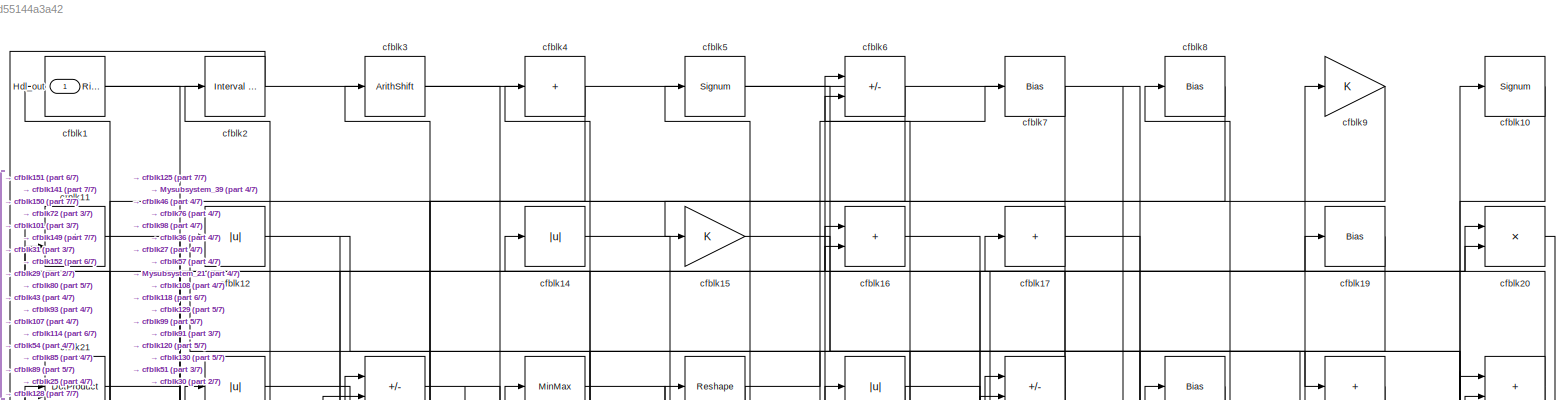
[diagram: root canvas - part 1/7, full width, top band]
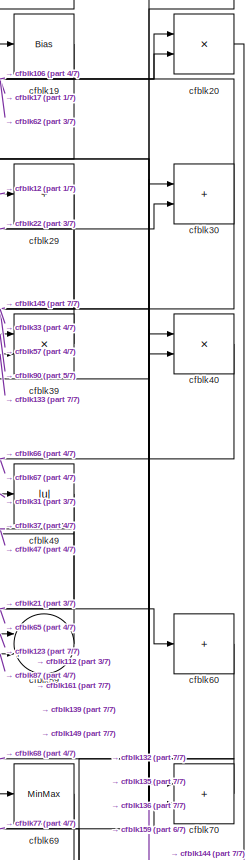
[diagram: root canvas - part 2/7, top right region]
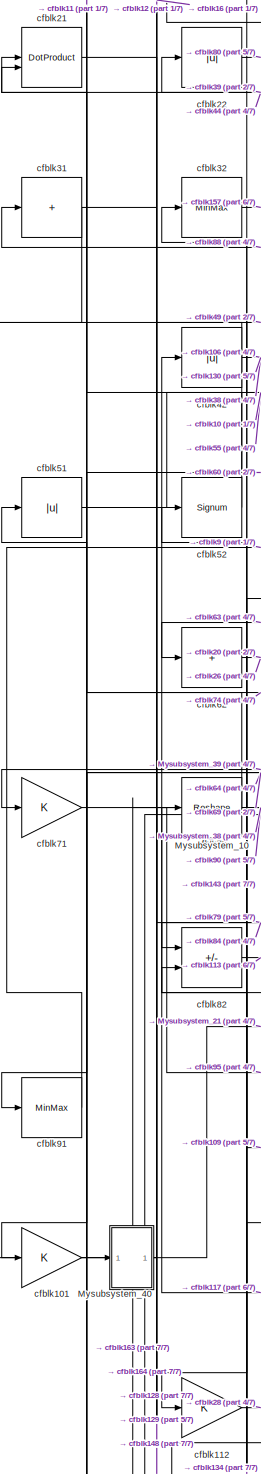
[diagram: root canvas - part 3/7, middle left region]
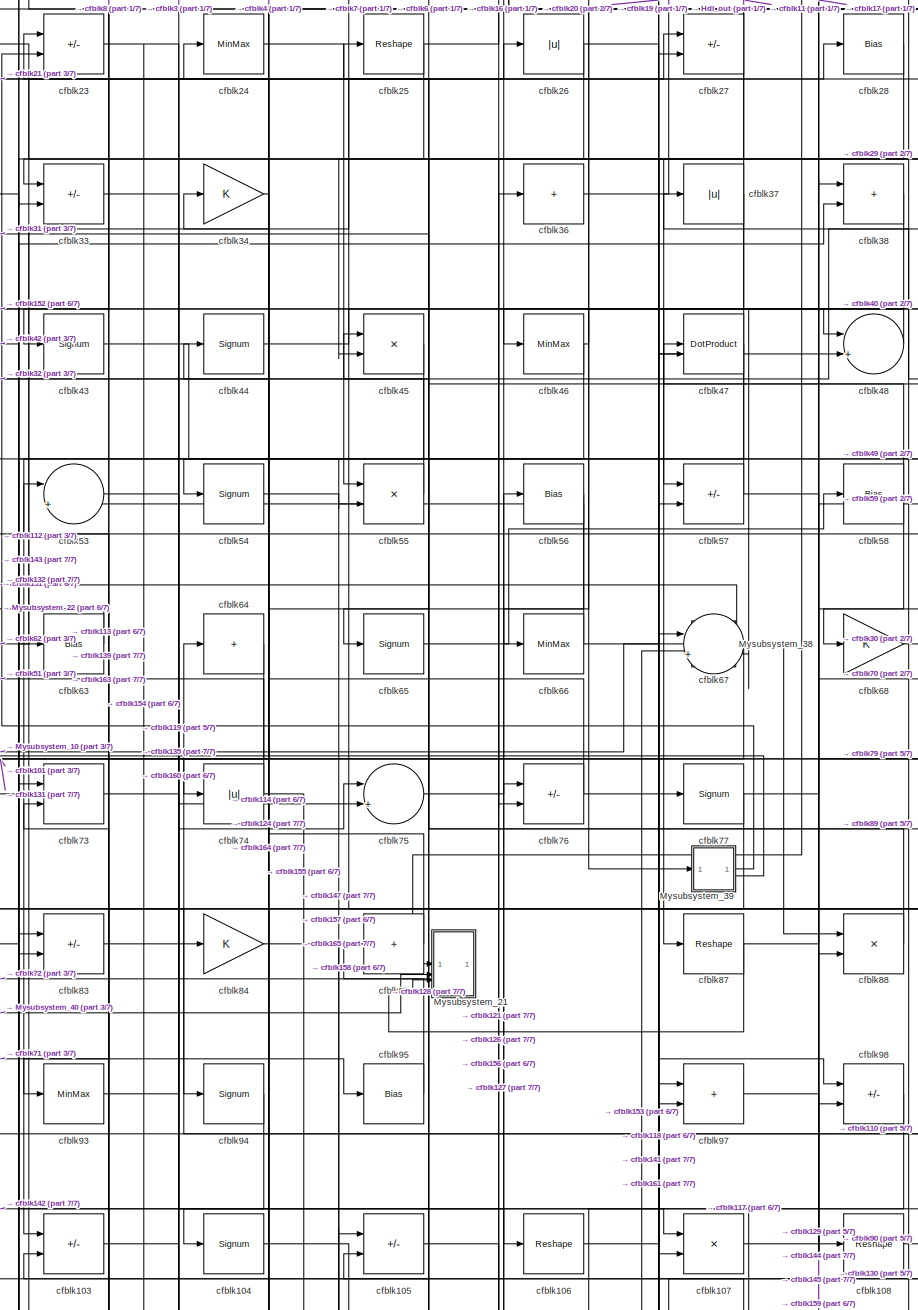
[diagram: root canvas - part 4/7, central region]
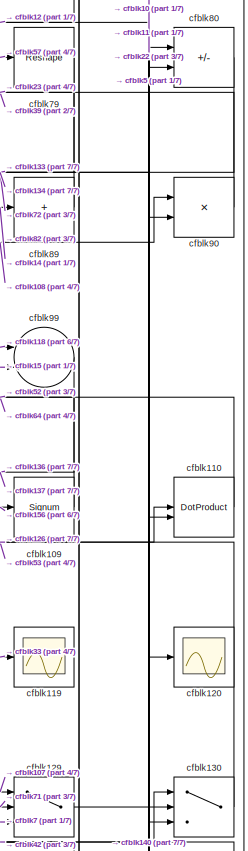
[diagram: root canvas - part 5/7, middle right region]
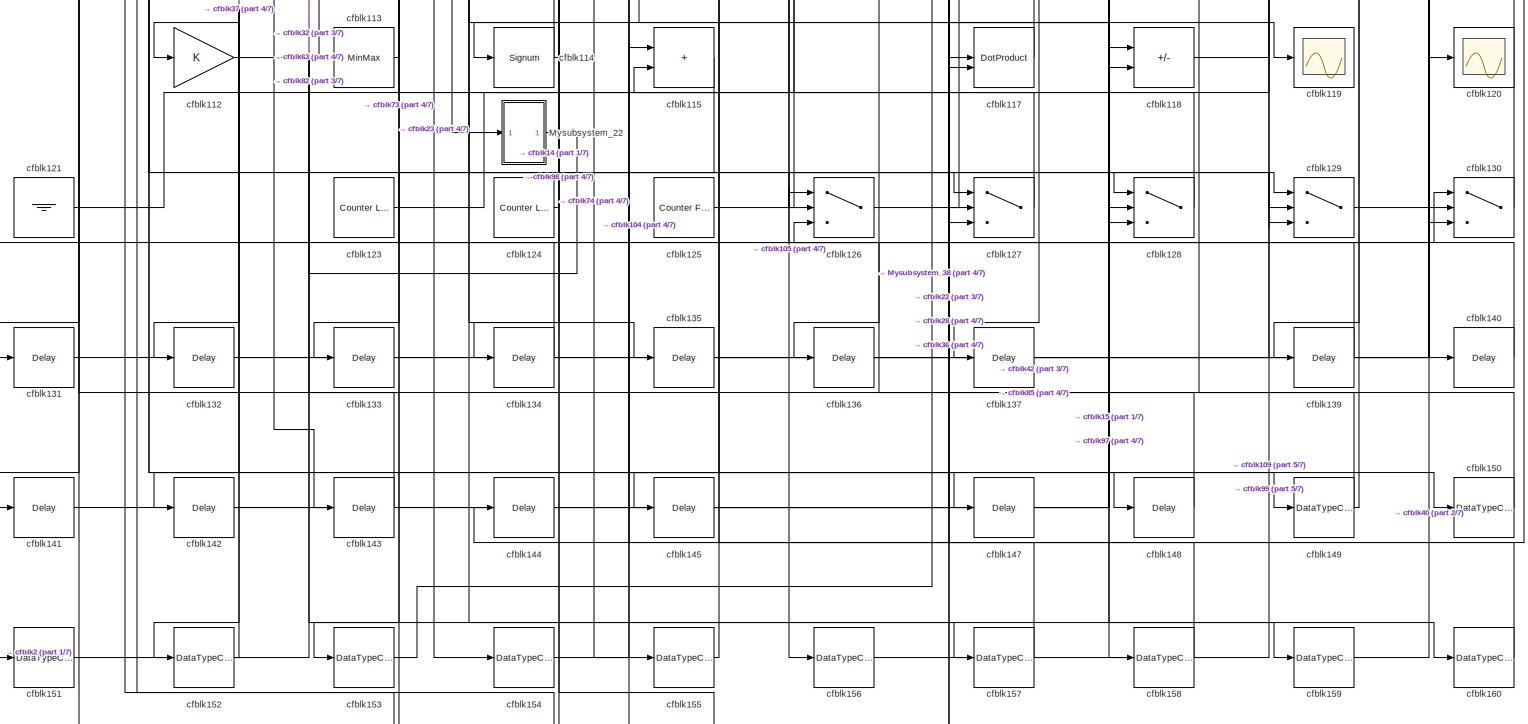
[diagram: root canvas - part 6/7, full width, bottom band]
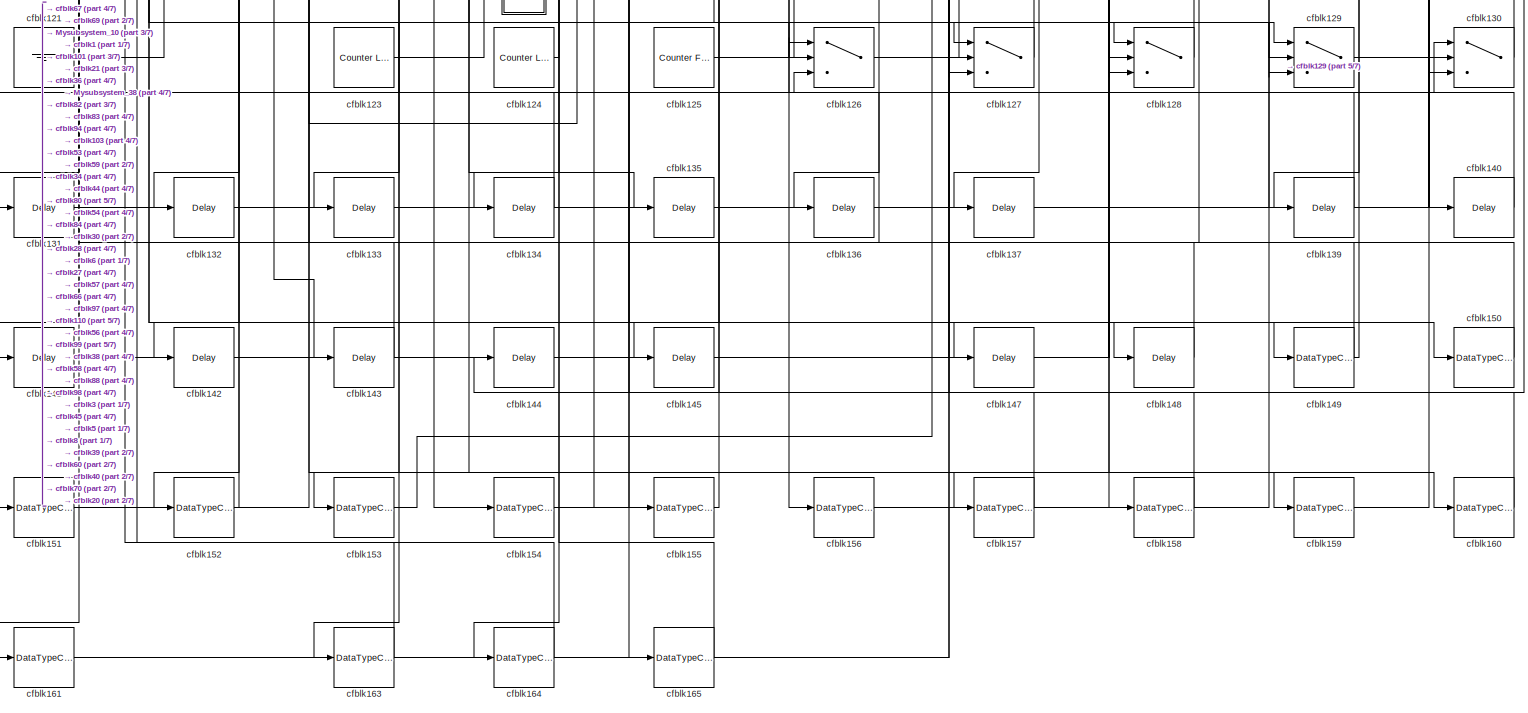
[diagram: root canvas - part 7/7, full width, bottom band]
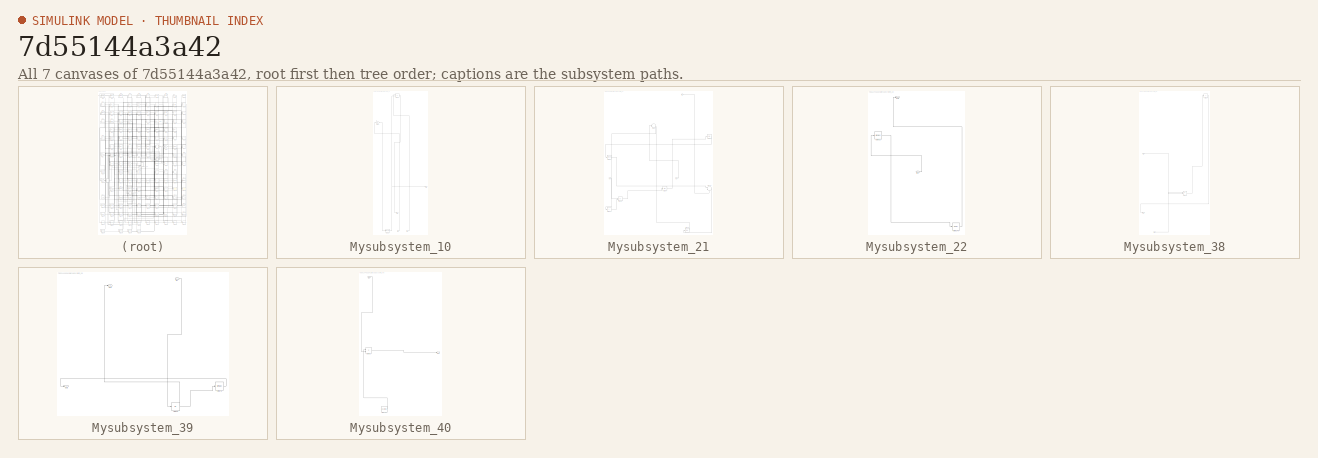
[diagram: thumbnail index - all 7 canvases of the model, root first then tree order]
MODEL slx_7d55144a3a42
KIND model
CONFIG AbsTol = auto
CONFIG EnableMultiTasking = off
CONFIG FixedStep = auto
CONFIG MaxStep = auto
CONFIG MinStep = auto
CONFIG RelTol = 1e-3
CONFIG SampleTimeConstraint = Unconstrained
CONFIG SolverName = VariableStepAuto
CONFIG StartTime = 0.0
CONFIG StopTime = 10.0
BLOCK [Outport] Hdl_out
  OutDataTypeStr = uint8
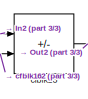
[diagram: Mysubsystem_10 - part 1/3, top center region]
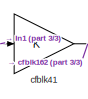
[diagram: Mysubsystem_10 - part 2/3, top left region]
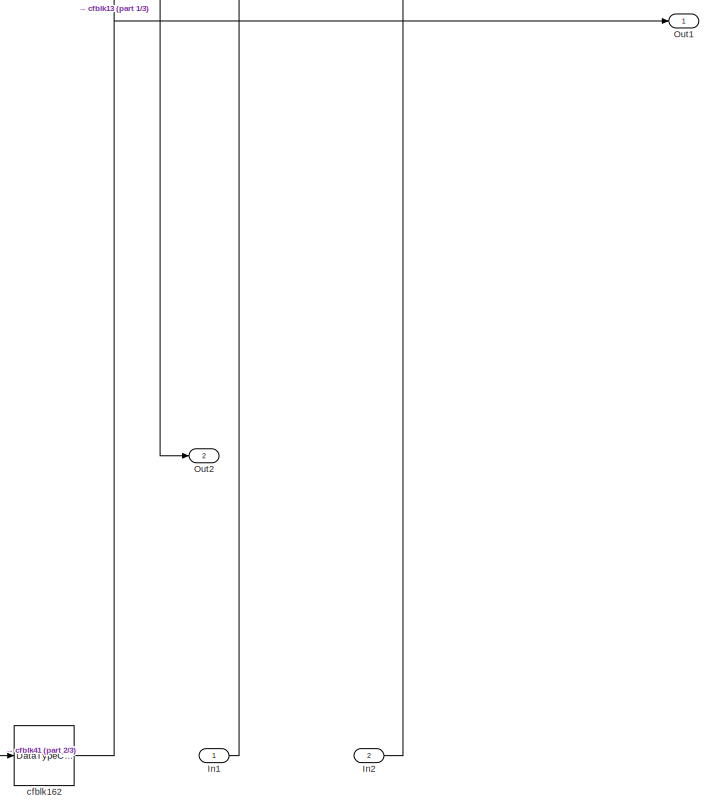
[diagram: Mysubsystem_10 - part 3/3, full width, bottom band]
BLOCK [SubSystem] Mysubsystem_10
  RTWFcnName = Mysubsystem_10
  RTWFcnNameOpts = User specified
  RTWFileNameOpts = Use function name
  RTWSystemCode = Reusable function
  TreatAsAtomicUnit = on
BLOCK [Inport] Mysubsystem_10/In1
BLOCK [Inport] Mysubsystem_10/In2
  Port = 2
BLOCK [Outport] Mysubsystem_10/Out1
BLOCK [Outport] Mysubsystem_10/Out2
  Port = 2
BLOCK [Sum] Mysubsystem_10/cfblk13
  IconShape = rectangular
  Inputs = +-
BLOCK [DataTypeConversion] Mysubsystem_10/cfblk162
  RndMeth = Floor
  SaturateOnIntegerOverflow = off
BLOCK [Gain] Mysubsystem_10/cfblk41
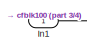
[diagram: Mysubsystem_21 - part 1/4, top right region]
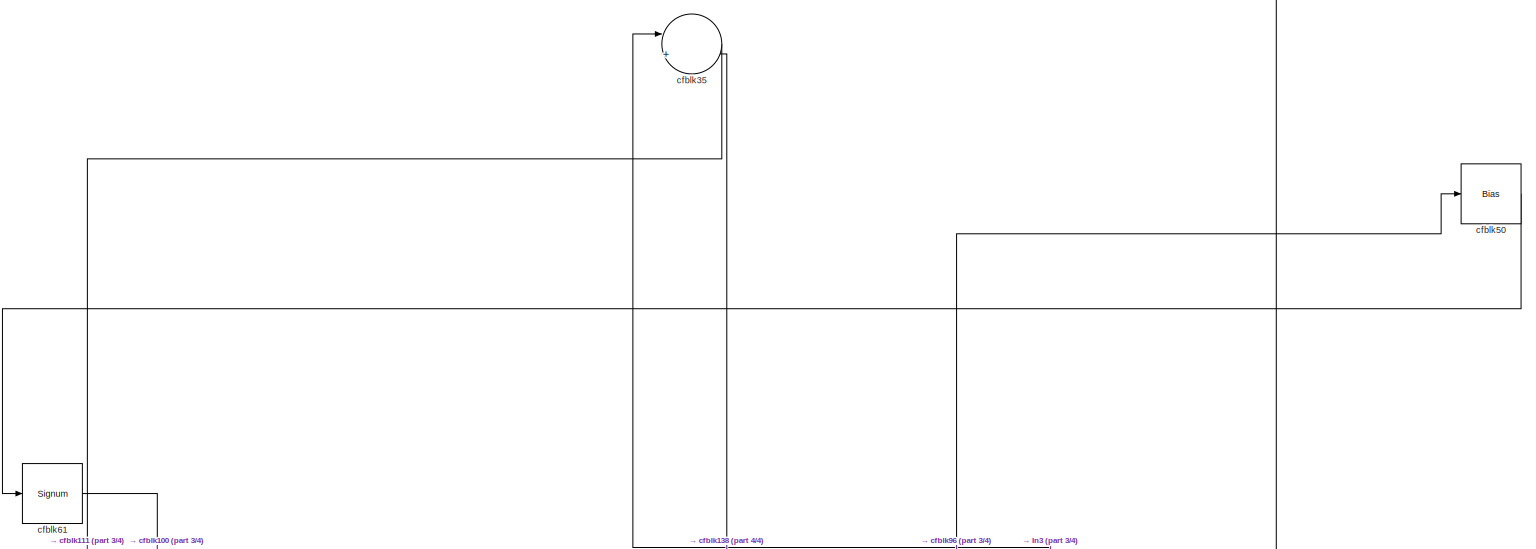
[diagram: Mysubsystem_21 - part 2/4, full width, middle band]
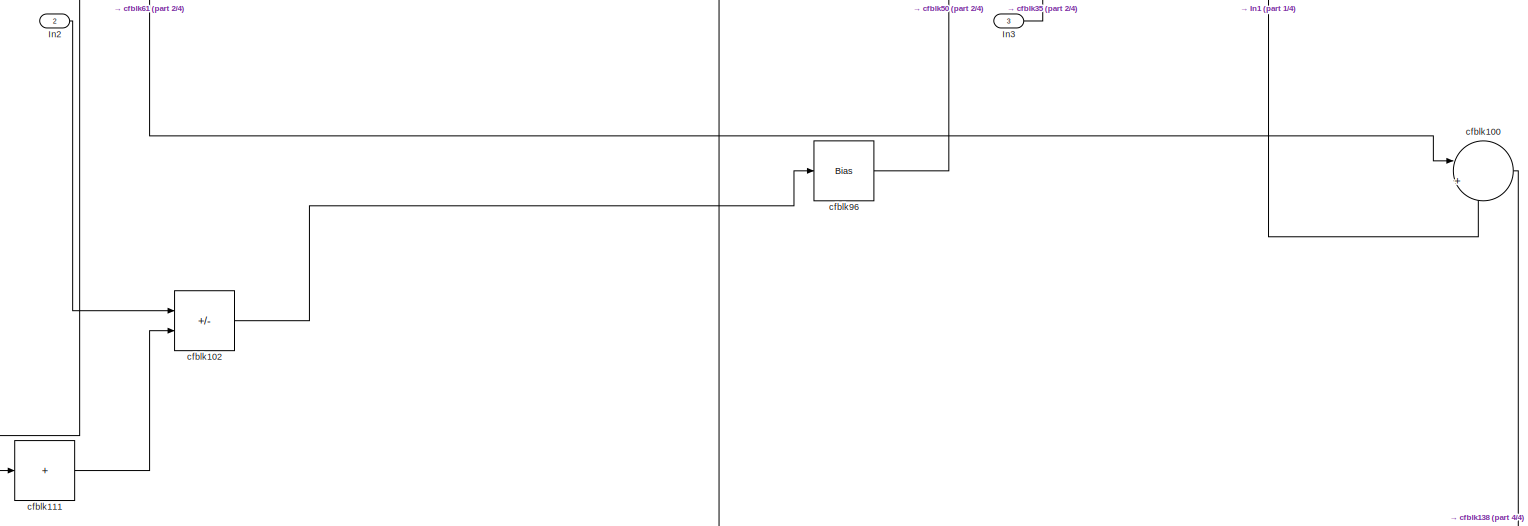
[diagram: Mysubsystem_21 - part 3/4, full width, bottom band]
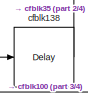
[diagram: Mysubsystem_21 - part 4/4, bottom right region]
BLOCK [SubSystem] Mysubsystem_21
  RTWFcnName = Mysubsystem_21
  RTWFcnNameOpts = User specified
  RTWFileNameOpts = Use function name
  RTWSystemCode = Reusable function
  TreatAsAtomicUnit = on
BLOCK [Inport] Mysubsystem_21/In1
BLOCK [Inport] Mysubsystem_21/In2
  Port = 2
BLOCK [Inport] Mysubsystem_21/In3
  Port = 3
BLOCK [Sum] Mysubsystem_21/cfblk100
  Inputs = |++
BLOCK [Sum] Mysubsystem_21/cfblk102
  IconShape = rectangular
  Inputs = +-
BLOCK [Sum] Mysubsystem_21/cfblk111
  IconShape = rectangular
  Inputs = +
BLOCK [Delay] Mysubsystem_21/cfblk138
  InputPortMap = u0
  SampleTime = 1
BLOCK [Sum] Mysubsystem_21/cfblk35
  Inputs = |++
BLOCK [Bias] Mysubsystem_21/cfblk50
  Bias = 0.0
  SaturateOnIntegerOverflow = off
BLOCK [Signum] Mysubsystem_21/cfblk61
BLOCK [Bias] Mysubsystem_21/cfblk96
  Bias = 0.0
  SaturateOnIntegerOverflow = off
BLOCK [SubSystem] Mysubsystem_22
  RTWFcnName = Mysubsystem_22
  RTWFcnNameOpts = User specified
  RTWFileNameOpts = Use function name
  RTWSystemCode = Reusable function
  TreatAsAtomicUnit = on
BLOCK [Inport] Mysubsystem_22/In1
BLOCK [Outport] Mysubsystem_22/Out1
BLOCK [Delay] Mysubsystem_22/cfblk146
  InputPortMap = u0
  SampleTime = 1
BLOCK [MinMax] Mysubsystem_22/cfblk92
BLOCK [SubSystem] Mysubsystem_38
  RTWFcnName = Mysubsystem_38
  RTWFcnNameOpts = User specified
  RTWFileNameOpts = Use function name
  RTWSystemCode = Reusable function
  TreatAsAtomicUnit = on
BLOCK [Inport] Mysubsystem_38/In1
BLOCK [Inport] Mysubsystem_38/In2
  Port = 2
BLOCK [Outport] Mysubsystem_38/Out1
BLOCK [Product] Mysubsystem_38/cfblk116
  Inputs = */
  RndMeth = Zero
  SaturateOnIntegerOverflow = on
BLOCK [Sum] Mysubsystem_38/cfblk18
  IconShape = rectangular
  Inputs = +
BLOCK [SubSystem] Mysubsystem_39
  RTWFcnName = Mysubsystem_39
  RTWFcnNameOpts = User specified
  RTWFileNameOpts = Use function name
  RTWSystemCode = Reusable function
  TreatAsAtomicUnit = on
BLOCK [Inport] Mysubsystem_39/In1
BLOCK [Outport] Mysubsystem_39/Out1
BLOCK [Outport] Mysubsystem_39/Out2
  Port = 2
BLOCK [MinMax] Mysubsystem_39/cfblk78
BLOCK [Abs] Mysubsystem_39/cfblk86
  SaturateOnIntegerOverflow = off
BLOCK [SubSystem] Mysubsystem_40
  RTWFcnName = Mysubsystem_40
  RTWFcnNameOpts = User specified
  RTWFileNameOpts = Use function name
  RTWSystemCode = Reusable function
  TreatAsAtomicUnit = on
BLOCK [Inport] Mysubsystem_40/In1
BLOCK [Outport] Mysubsystem_40/Out1
BLOCK [Reference] Mysubsystem_40/cfblk122  REF=hdlsllib/Sources/Counter
Free-Running
  SourceBlock = hdlsllib/Sources/Counter\nFree-Running
  SourceType = Counter Free-Running
BLOCK [Product] Mysubsystem_40/cfblk81
  Inputs = */
  RndMeth = Zero
  SaturateOnIntegerOverflow = on
BLOCK [Reference] cfblk1  REF=hdlsllib/Logic and Bit
Operations/Detect Rise
Positive
  SourceBlock = hdlsllib/Logic and Bit\nOperations/Detect Rise\nPositive
  SourceType = Detect Rise Positive
BLOCK [Signum] cfblk10
BLOCK [Gain] cfblk101
  OutDataTypeStr = uint8
BLOCK [Sum] cfblk103
  IconShape = rectangular
  Inputs = +-
  OutDataTypeStr = uint8
BLOCK [Signum] cfblk104
BLOCK [Sum] cfblk105
  IconShape = rectangular
  Inputs = +-
  OutDataTypeStr = uint8
BLOCK [Reshape] cfblk106
BLOCK [Product] cfblk107
  Inputs = */
  OutDataTypeStr = uint8
  RndMeth = Zero
  SaturateOnIntegerOverflow = on
BLOCK [Reshape] cfblk108
BLOCK [Signum] cfblk109
BLOCK [Sum] cfblk11
  IconShape = rectangular
  OutDataTypeStr = uint8
BLOCK [DotProduct] cfblk110
  OutDataTypeStr = uint8
BLOCK [Gain] cfblk112
  OutDataTypeStr = uint8
BLOCK [MinMax] cfblk113
  OutDataTypeStr = uint8
BLOCK [Signum] cfblk114
BLOCK [Sum] cfblk115
  IconShape = rectangular
  OutDataTypeStr = uint8
BLOCK [DotProduct] cfblk117
  OutDataTypeStr = uint8
BLOCK [Sum] cfblk118
  IconShape = rectangular
  Inputs = +-
  OutDataTypeStr = uint8
BLOCK [Scope] cfblk119
  Floating = off
  NumInputPorts = 1
  ScopeSpecificationString = Simulink.scopes.TimeScopeBlockCfg('CurrentConfiguration', extmgr.ConfigurationSet(extmgr.Configuration('Core','General UI',true),extmgr.Configuration('Core','Source UI',true),extmgr.Configuration('Sources','WiredSimulink',true,'DataLoggingVariableName','ScopeData2','DataLoggingSaveFormat','Array','DataLoggingLimitDataPoints',true,'DataLoggingDecimation','1'),extmgr.Configuration('Visuals','Time Do...<+868ch>
BLOCK [Abs] cfblk12
  OutDataTypeStr = uint8
  SaturateOnIntegerOverflow = off
BLOCK [Scope] cfblk120
  Floating = off
  NumInputPorts = 1
  ScopeSpecificationString = Simulink.scopes.TimeScopeBlockCfg('CurrentConfiguration', extmgr.ConfigurationSet(extmgr.Configuration('Core','General UI',true),extmgr.Configuration('Core','Source UI',true),extmgr.Configuration('Sources','WiredSimulink',true,'DataLoggingVariableName','ScopeData2','DataLoggingSaveFormat','Array','DataLoggingLimitDataPoints',true,'DataLoggingDecimation','1'),extmgr.Configuration('Visuals','Time Do...<+868ch>
BLOCK [Ground] cfblk121
BLOCK [Reference] cfblk123  REF=hdlsllib/Sources/Counter
Limited
  SourceBlock = hdlsllib/Sources/Counter\nLimited
  SourceType = Counter Limited
BLOCK [Reference] cfblk124  REF=hdlsllib/Sources/Counter
Limited
  SourceBlock = hdlsllib/Sources/Counter\nLimited
  SourceType = Counter Limited
BLOCK [Reference] cfblk125  REF=hdlsllib/Sources/Counter
Free-Running
  SourceBlock = hdlsllib/Sources/Counter\nFree-Running
  SourceType = Counter Free-Running
BLOCK [Switch] cfblk126
  InputSameDT = off
  OutDataTypeStr = uint8
  SaturateOnIntegerOverflow = off
BLOCK [Switch] cfblk127
  InputSameDT = off
  OutDataTypeStr = uint8
  SaturateOnIntegerOverflow = off
BLOCK [Switch] cfblk128
  InputSameDT = off
  OutDataTypeStr = uint8
  SaturateOnIntegerOverflow = off
BLOCK [Switch] cfblk129
  InputSameDT = off
  OutDataTypeStr = uint8
  SaturateOnIntegerOverflow = off
BLOCK [Switch] cfblk130
  InputSameDT = off
  OutDataTypeStr = uint8
  SaturateOnIntegerOverflow = off
BLOCK [Delay] cfblk131
  InputPortMap = u0
  SampleTime = 1
BLOCK [Delay] cfblk132
  InputPortMap = u0
  SampleTime = 1
BLOCK [Delay] cfblk133
  InputPortMap = u0
  SampleTime = 1
BLOCK [Delay] cfblk134
  InputPortMap = u0
  SampleTime = 1
BLOCK [Delay] cfblk135
  InputPortMap = u0
  SampleTime = 1
BLOCK [Delay] cfblk136
  InputPortMap = u0
  SampleTime = 1
BLOCK [Delay] cfblk137
  InputPortMap = u0
  SampleTime = 1
BLOCK [Delay] cfblk139
  InputPortMap = u0
  SampleTime = 1
BLOCK [Abs] cfblk14
  OutDataTypeStr = uint8
  SaturateOnIntegerOverflow = off
BLOCK [Delay] cfblk140
  InputPortMap = u0
  SampleTime = 1
BLOCK [Delay] cfblk141
  InputPortMap = u0
  SampleTime = 1
BLOCK [Delay] cfblk142
  InputPortMap = u0
  SampleTime = 1
BLOCK [Delay] cfblk143
  InputPortMap = u0
  SampleTime = 1
BLOCK [Delay] cfblk144
  InputPortMap = u0
  SampleTime = 1
BLOCK [Delay] cfblk145
  InputPortMap = u0
  SampleTime = 1
BLOCK [Delay] cfblk147
  InputPortMap = u0
  SampleTime = 1
BLOCK [Delay] cfblk148
  InputPortMap = u0
  SampleTime = 1
BLOCK [DataTypeConversion] cfblk149
  OutDataTypeStr = uint8
  RndMeth = Floor
  SaturateOnIntegerOverflow = off
BLOCK [Gain] cfblk15
  OutDataTypeStr = uint8
BLOCK [DataTypeConversion] cfblk150
  OutDataTypeStr = uint8
  RndMeth = Floor
  SaturateOnIntegerOverflow = off
BLOCK [DataTypeConversion] cfblk151
  OutDataTypeStr = uint8
  RndMeth = Floor
  SaturateOnIntegerOverflow = off
BLOCK [DataTypeConversion] cfblk152
  OutDataTypeStr = uint8
  RndMeth = Floor
  SaturateOnIntegerOverflow = off
BLOCK [DataTypeConversion] cfblk153
  OutDataTypeStr = uint8
  RndMeth = Floor
  SaturateOnIntegerOverflow = off
BLOCK [DataTypeConversion] cfblk154
  OutDataTypeStr = uint8
  RndMeth = Floor
  SaturateOnIntegerOverflow = off
BLOCK [DataTypeConversion] cfblk155
  OutDataTypeStr = uint8
  RndMeth = Floor
  SaturateOnIntegerOverflow = off
BLOCK [DataTypeConversion] cfblk156
  OutDataTypeStr = uint8
  RndMeth = Floor
  SaturateOnIntegerOverflow = off
BLOCK [DataTypeConversion] cfblk157
  OutDataTypeStr = uint8
  RndMeth = Floor
  SaturateOnIntegerOverflow = off
BLOCK [DataTypeConversion] cfblk158
  OutDataTypeStr = uint8
  RndMeth = Floor
  SaturateOnIntegerOverflow = off
BLOCK [DataTypeConversion] cfblk159
  OutDataTypeStr = uint8
  RndMeth = Floor
  SaturateOnIntegerOverflow = off
BLOCK [Sum] cfblk16
  IconShape = rectangular
  OutDataTypeStr = uint8
BLOCK [DataTypeConversion] cfblk160
  OutDataTypeStr = uint8
  RndMeth = Floor
  SaturateOnIntegerOverflow = off
BLOCK [DataTypeConversion] cfblk161
  OutDataTypeStr = uint8
  RndMeth = Floor
  SaturateOnIntegerOverflow = off
BLOCK [DataTypeConversion] cfblk163
  OutDataTypeStr = uint8
  RndMeth = Floor
  SaturateOnIntegerOverflow = off
BLOCK [DataTypeConversion] cfblk164
  OutDataTypeStr = uint8
  RndMeth = Floor
  SaturateOnIntegerOverflow = off
BLOCK [DataTypeConversion] cfblk165
  OutDataTypeStr = uint8
  RndMeth = Floor
  SaturateOnIntegerOverflow = off
BLOCK [Sum] cfblk17
  IconShape = rectangular
  Inputs = +
  OutDataTypeStr = uint8
BLOCK [Bias] cfblk19
  Bias = 0.0
  SaturateOnIntegerOverflow = off
BLOCK [Reference] cfblk2  REF=hdlsllib/Logic and Bit
Operations/Interval Test
  SourceBlock = hdlsllib/Logic and Bit\nOperations/Interval Test
  SourceType = Interval Test
BLOCK [Product] cfblk20
  Inputs = */
  OutDataTypeStr = uint8
  RndMeth = Zero
  SaturateOnIntegerOverflow = on
BLOCK [DotProduct] cfblk21
  OutDataTypeStr = uint8
BLOCK [Abs] cfblk22
  OutDataTypeStr = uint8
  SaturateOnIntegerOverflow = off
BLOCK [Sum] cfblk23
  IconShape = rectangular
  Inputs = +-
  OutDataTypeStr = uint8
BLOCK [MinMax] cfblk24
  OutDataTypeStr = uint8
BLOCK [Reshape] cfblk25
BLOCK [Abs] cfblk26
  OutDataTypeStr = uint8
  SaturateOnIntegerOverflow = off
BLOCK [Sum] cfblk27
  IconShape = rectangular
  Inputs = +-
  OutDataTypeStr = uint8
BLOCK [Bias] cfblk28
  Bias = 0.0
  SaturateOnIntegerOverflow = off
BLOCK [Sum] cfblk29
  IconShape = rectangular
  Inputs = +
  OutDataTypeStr = uint8
BLOCK [ArithShift] cfblk3
  BitShiftNumber = 8
  InputPortMap = u0
BLOCK [Sum] cfblk30
  IconShape = rectangular
  OutDataTypeStr = uint8
BLOCK [Sum] cfblk31
  IconShape = rectangular
  Inputs = +
  OutDataTypeStr = uint8
BLOCK [MinMax] cfblk32
  OutDataTypeStr = uint8
BLOCK [Sum] cfblk33
  IconShape = rectangular
  Inputs = +-
  OutDataTypeStr = uint8
BLOCK [Gain] cfblk34
  OutDataTypeStr = uint8
BLOCK [Sum] cfblk36
  IconShape = rectangular
  Inputs = +
  OutDataTypeStr = uint8
BLOCK [Abs] cfblk37
  OutDataTypeStr = uint8
  SaturateOnIntegerOverflow = off
BLOCK [Sum] cfblk38
  IconShape = rectangular
  OutDataTypeStr = uint8
BLOCK [Product] cfblk39
  Inputs = */
  OutDataTypeStr = uint8
  RndMeth = Zero
  SaturateOnIntegerOverflow = on
BLOCK [Sum] cfblk4
  IconShape = rectangular
  Inputs = +
  OutDataTypeStr = uint8
BLOCK [Product] cfblk40
  Inputs = */
  OutDataTypeStr = uint8
  RndMeth = Zero
  SaturateOnIntegerOverflow = on
BLOCK [Abs] cfblk42
  OutDataTypeStr = uint8
  SaturateOnIntegerOverflow = off
BLOCK [Signum] cfblk43
BLOCK [Signum] cfblk44
BLOCK [Product] cfblk45
  Inputs = */
  OutDataTypeStr = uint8
  RndMeth = Zero
  SaturateOnIntegerOverflow = on
BLOCK [MinMax] cfblk46
  OutDataTypeStr = uint8
BLOCK [DotProduct] cfblk47
  OutDataTypeStr = uint8
BLOCK [Sum] cfblk48
  Inputs = |++
  OutDataTypeStr = uint8
BLOCK [Abs] cfblk49
  OutDataTypeStr = uint8
  SaturateOnIntegerOverflow = off
BLOCK [Signum] cfblk5
BLOCK [Abs] cfblk51
  OutDataTypeStr = uint8
  SaturateOnIntegerOverflow = off
BLOCK [Signum] cfblk52
BLOCK [Sum] cfblk53
  Inputs = |++
  OutDataTypeStr = uint8
BLOCK [Signum] cfblk54
BLOCK [Product] cfblk55
  Inputs = */
  OutDataTypeStr = uint8
  RndMeth = Zero
  SaturateOnIntegerOverflow = on
BLOCK [Bias] cfblk56
  Bias = 0.0
  SaturateOnIntegerOverflow = off
BLOCK [Sum] cfblk57
  IconShape = rectangular
  Inputs = +-
  OutDataTypeStr = uint8
BLOCK [Bias] cfblk58
  Bias = 0.0
  SaturateOnIntegerOverflow = off
BLOCK [Sum] cfblk59
  Inputs = |++
  OutDataTypeStr = uint8
BLOCK [Sum] cfblk6
  IconShape = rectangular
  Inputs = +-
  OutDataTypeStr = uint8
BLOCK [Sum] cfblk60
  IconShape = rectangular
  Inputs = +
  OutDataTypeStr = uint8
BLOCK [Sum] cfblk62
  IconShape = rectangular
  Inputs = +
  OutDataTypeStr = uint8
BLOCK [Bias] cfblk63
  Bias = 0.0
  SaturateOnIntegerOverflow = off
BLOCK [Sum] cfblk64
  IconShape = rectangular
  Inputs = +
  OutDataTypeStr = uint8
BLOCK [Signum] cfblk65
BLOCK [MinMax] cfblk66
  OutDataTypeStr = uint8
BLOCK [Sum] cfblk67
  Inputs = |++
  OutDataTypeStr = uint8
BLOCK [Gain] cfblk68
  OutDataTypeStr = uint8
BLOCK [MinMax] cfblk69
  OutDataTypeStr = uint8
BLOCK [Bias] cfblk7
  Bias = 0.0
  SaturateOnIntegerOverflow = off
BLOCK [Sum] cfblk70
  IconShape = rectangular
  OutDataTypeStr = uint8
BLOCK [Gain] cfblk71
  OutDataTypeStr = uint8
BLOCK [Reshape] cfblk72
BLOCK [Product] cfblk73
  Inputs = */
  OutDataTypeStr = uint8
  RndMeth = Zero
  SaturateOnIntegerOverflow = on
BLOCK [Abs] cfblk74
  OutDataTypeStr = uint8
  SaturateOnIntegerOverflow = off
BLOCK [Sum] cfblk75
  Inputs = |++
  OutDataTypeStr = uint8
BLOCK [Sum] cfblk76
  IconShape = rectangular
  Inputs = +-
  OutDataTypeStr = uint8
BLOCK [Signum] cfblk77
BLOCK [Reshape] cfblk79
BLOCK [Bias] cfblk8
  Bias = 0.0
  SaturateOnIntegerOverflow = off
BLOCK [Sum] cfblk80
  IconShape = rectangular
  Inputs = +-
  OutDataTypeStr = uint8
BLOCK [Sum] cfblk82
  IconShape = rectangular
  Inputs = +-
  OutDataTypeStr = uint8
BLOCK [Sum] cfblk83
  IconShape = rectangular
  Inputs = +-
  OutDataTypeStr = uint8
BLOCK [Gain] cfblk84
  OutDataTypeStr = uint8
BLOCK [Sum] cfblk85
  IconShape = rectangular
  Inputs = +
  OutDataTypeStr = uint8
BLOCK [Reshape] cfblk87
BLOCK [Product] cfblk88
  Inputs = */
  OutDataTypeStr = uint8
  RndMeth = Zero
  SaturateOnIntegerOverflow = on
BLOCK [Sum] cfblk89
  IconShape = rectangular
  Inputs = +
  OutDataTypeStr = uint8
BLOCK [Gain] cfblk9
  OutDataTypeStr = uint8
BLOCK [Product] cfblk90
  Inputs = */
  OutDataTypeStr = uint8
  RndMeth = Zero
  SaturateOnIntegerOverflow = on
BLOCK [MinMax] cfblk91
  OutDataTypeStr = uint8
BLOCK [MinMax] cfblk93
  OutDataTypeStr = uint8
BLOCK [Signum] cfblk94
BLOCK [Bias] cfblk95
  Bias = 0.0
  SaturateOnIntegerOverflow = off
BLOCK [Sum] cfblk97
  IconShape = rectangular
  OutDataTypeStr = uint8
BLOCK [Sum] cfblk98
  IconShape = rectangular
  Inputs = +-
  OutDataTypeStr = uint8
BLOCK [Sum] cfblk99
  Inputs = |++
  OutDataTypeStr = uint8
LINE Mysubsystem_10/In1:1 -> Mysubsystem_10/cfblk41:1
LINE Mysubsystem_10/In2:1 -> Mysubsystem_10/cfblk13:1
LINE Mysubsystem_10/cfblk13:1 -> Mysubsystem_10/Out2:1
NET Mysubsystem_10/cfblk162:1 -> Mysubsystem_10/Out1:1, Mysubsystem_10/cfblk13:2
LINE Mysubsystem_10/cfblk41:1 -> Mysubsystem_10/cfblk162:1
LINE Mysubsystem_10:1 -> Mysubsystem_38:1
LINE Mysubsystem_10:2 -> cfblk143:1
LINE Mysubsystem_21/In1:1 -> Mysubsystem_21/cfblk100:2
LINE Mysubsystem_21/In2:1 -> Mysubsystem_21/cfblk102:1
LINE Mysubsystem_21/In3:1 -> Mysubsystem_21/cfblk35:1
LINE Mysubsystem_21/cfblk100:1 -> Mysubsystem_21/cfblk138:1
LINE Mysubsystem_21/cfblk102:1 -> Mysubsystem_21/cfblk96:1
LINE Mysubsystem_21/cfblk111:1 -> Mysubsystem_21/cfblk102:2
LINE Mysubsystem_21/cfblk138:1 -> Mysubsystem_21/cfblk35:2
LINE Mysubsystem_21/cfblk35:1 -> Mysubsystem_21/cfblk111:1
LINE Mysubsystem_21/cfblk50:1 -> Mysubsystem_21/cfblk61:1
LINE Mysubsystem_21/cfblk61:1 -> Mysubsystem_21/cfblk100:1
LINE Mysubsystem_21/cfblk96:1 -> Mysubsystem_21/cfblk50:1
LINE Mysubsystem_22/In1:1 -> Mysubsystem_22/cfblk92:1
LINE Mysubsystem_22/cfblk146:1 -> Mysubsystem_22/Out1:1
LINE Mysubsystem_22/cfblk92:1 -> Mysubsystem_22/cfblk146:1
LINE Mysubsystem_22:1 -> cfblk73:1
LINE Mysubsystem_38/In1:1 -> Mysubsystem_38/cfblk116:2
LINE Mysubsystem_38/In2:1 -> Mysubsystem_38/cfblk116:1
LINE Mysubsystem_38/cfblk116:1 -> Mysubsystem_38/cfblk18:1
LINE Mysubsystem_38/cfblk18:1 -> Mysubsystem_38/Out1:1
LINE Mysubsystem_38:1 -> cfblk132:1
LINE Mysubsystem_39/In1:1 -> Mysubsystem_39/cfblk86:1
LINE Mysubsystem_39/cfblk78:1 -> Mysubsystem_39/Out2:1
NET Mysubsystem_39/cfblk86:1 -> Mysubsystem_39/Out1:1, Mysubsystem_39/cfblk78:1
LINE Mysubsystem_39:1 -> cfblk23:2
LINE Mysubsystem_39:2 -> cfblk71:1
LINE Mysubsystem_40/In1:1 -> Mysubsystem_40/cfblk81:2
LINE Mysubsystem_40/cfblk122:1 -> Mysubsystem_40/cfblk81:1
LINE Mysubsystem_40/cfblk81:1 -> Mysubsystem_40/Out1:1
LINE Mysubsystem_40:1 -> Mysubsystem_21:2
NET cfblk101:1 -> cfblk12:1, cfblk148:1
NET cfblk103:1 -> cfblk127:3, cfblk27:1
LINE cfblk104:1 -> cfblk158:1
LINE cfblk105:1 -> cfblk156:1
LINE cfblk106:1 -> cfblk20:1
LINE cfblk107:1 -> cfblk129:1
LINE cfblk108:1 -> cfblk90:1
LINE cfblk109:1 -> cfblk52:1
LINE cfblk10:1 -> cfblk130:3
LINE cfblk110:1 -> cfblk64:1
LINE cfblk112:1 -> cfblk28:1
LINE cfblk113:1 -> cfblk73:2
NET cfblk114:1 -> Mysubsystem_22:1, cfblk14:1
LINE cfblk115:1 -> cfblk153:1
NET cfblk117:1 -> cfblk42:1, cfblk85:1
LINE cfblk118:1 -> cfblk99:1
LINE cfblk11:1 -> cfblk130:2
LINE cfblk121:1 -> cfblk36:1
LINE cfblk123:1 -> cfblk59:1
LINE cfblk124:1 -> cfblk44:1
NET cfblk125:1 -> cfblk127:1, cfblk6:1
LINE cfblk126:1 -> cfblk110:1
LINE cfblk127:1 -> cfblk56:1
NET cfblk128:1 -> cfblk3:1, cfblk45:1, cfblk5:1
LINE cfblk129:1 -> cfblk140:1
NET cfblk12:1 -> cfblk29:1, cfblk80:2
LINE cfblk130:1 -> cfblk53:1
LINE cfblk131:1 -> cfblk57:2
LINE cfblk132:1 -> cfblk40:1
LINE cfblk133:1 -> cfblk39:2
LINE cfblk134:1 -> cfblk82:2
LINE cfblk135:1 -> cfblk70:1
LINE cfblk136:1 -> cfblk30:1
LINE cfblk137:1 -> cfblk110:2
LINE cfblk139:1 -> cfblk103:2
LINE cfblk140:1 -> cfblk126:1
LINE cfblk141:1 -> cfblk67:1
LINE cfblk142:1 -> cfblk98:2
LINE cfblk143:1 -> cfblk83:1
LINE cfblk144:1 -> cfblk38:1
LINE cfblk145:1 -> cfblk88:2
LINE cfblk147:1 -> cfblk150:1
LINE cfblk148:1 -> cfblk126:3
NET cfblk149:1 -> cfblk69:1, cfblk8:1
LINE cfblk14:1 -> cfblk89:1
LINE cfblk150:1 -> cfblk1:1
LINE cfblk151:1 -> cfblk63:1
LINE cfblk152:1 -> cfblk2:1
LINE cfblk153:1 -> Mysubsystem_38:2
LINE cfblk154:1 -> cfblk115:1
LINE cfblk155:1 -> cfblk115:2
LINE cfblk156:1 -> cfblk109:1
LINE cfblk157:1 -> cfblk105:1
LINE cfblk158:1 -> cfblk105:2
LINE cfblk159:1 -> cfblk40:2
NET cfblk15:1 -> cfblk118:1, cfblk99:2
LINE cfblk160:1 -> cfblk97:1
LINE cfblk161:1 -> cfblk97:2
LINE cfblk163:1 -> Mysubsystem_10:1
NET cfblk164:1 -> Mysubsystem_10:2, cfblk27:2
LINE cfblk165:1 -> cfblk34:1
LINE cfblk16:1 -> cfblk98:1
LINE cfblk17:1 -> cfblk108:1
NET cfblk19:1 -> Mysubsystem_39:1, cfblk16:2, cfblk54:1, cfblk76:2
LINE cfblk1:1 -> cfblk149:1
LINE cfblk20:1 -> cfblk144:1
NET cfblk21:1 -> cfblk128:3, cfblk60:1
NET cfblk22:1 -> cfblk117:1, cfblk80:1
NET cfblk23:1 -> cfblk154:1, cfblk75:2
LINE cfblk24:1 -> cfblk55:1
NET cfblk25:1 -> cfblk45:2, cfblk7:1
NET cfblk26:1 -> cfblk33:1, cfblk48:2
NET cfblk27:1 -> cfblk11:2, cfblk127:2
NET cfblk28:1 -> cfblk117:2, cfblk126:2, cfblk47:2
NET cfblk29:1 -> cfblk33:2, cfblk57:1
LINE cfblk2:1 -> cfblk151:1
NET cfblk30:1 -> cfblk145:1, cfblk17:1
NET cfblk31:1 -> Mysubsystem_40:1, cfblk16:1, cfblk49:1, cfblk84:1
LINE cfblk32:1 -> cfblk157:1
LINE cfblk33:1 -> cfblk119:1
LINE cfblk34:1 -> cfblk164:1
NET cfblk36:1 -> cfblk118:2, cfblk19:1
LINE cfblk37:1 -> cfblk152:1
LINE cfblk38:1 -> cfblk87:1
LINE cfblk39:1 -> cfblk22:1
LINE cfblk3:1 -> cfblk107:1
NET cfblk40:1 -> cfblk66:1, cfblk67:2
NET cfblk42:1 -> cfblk106:1, cfblk130:1, cfblk38:2, cfblk91:1
LINE cfblk43:1 -> cfblk55:2
NET cfblk44:1 -> cfblk21:1, cfblk48:1
LINE cfblk45:1 -> cfblk74:1
NET cfblk46:1 -> cfblk6:2, cfblk83:2
LINE cfblk47:1 -> cfblk103:1
LINE cfblk48:1 -> cfblk46:1
LINE cfblk49:1 -> cfblk65:1
LINE cfblk4:1 -> cfblk43:1
LINE cfblk51:1 -> cfblk10:1
LINE cfblk52:1 -> cfblk21:2
LINE cfblk53:1 -> cfblk135:1
LINE cfblk54:1 -> cfblk165:1
LINE cfblk55:1 -> cfblk32:1
LINE cfblk56:1 -> cfblk104:1
NET cfblk57:1 -> Hdl_out:1, cfblk79:1
NET cfblk58:1 -> cfblk128:2, cfblk25:1
NET cfblk59:1 -> cfblk37:1, cfblk47:1
LINE cfblk5:1 -> cfblk120:1
LINE cfblk60:1 -> cfblk139:1
NET cfblk62:1 -> cfblk20:2, cfblk26:1
LINE cfblk63:1 -> cfblk62:1
LINE cfblk64:1 -> cfblk101:1
LINE cfblk65:1 -> cfblk58:1
NET cfblk66:1 -> cfblk128:1, cfblk53:2
NET cfblk67:1 -> cfblk131:1, cfblk88:1
LINE cfblk68:1 -> cfblk30:2
NET cfblk69:1 -> cfblk112:1, cfblk161:1
LINE cfblk6:1 -> cfblk141:1
LINE cfblk70:1 -> cfblk68:1
NET cfblk71:1 -> cfblk129:2, cfblk95:1
NET cfblk72:1 -> cfblk11:1, cfblk90:2
LINE cfblk73:1 -> cfblk160:1
NET cfblk74:1 -> cfblk155:1, cfblk51:1
LINE cfblk75:1 -> cfblk76:1
NET cfblk76:1 -> cfblk24:1, cfblk77:1
NET cfblk77:1 -> cfblk107:2, cfblk70:2
LINE cfblk79:1 -> cfblk82:1
NET cfblk7:1 -> Mysubsystem_21:1, cfblk129:3
NET cfblk80:1 -> cfblk133:1, cfblk134:1
LINE cfblk82:1 -> cfblk113:1
LINE cfblk83:1 -> cfblk94:1
LINE cfblk84:1 -> cfblk147:1
LINE cfblk85:1 -> cfblk4:1
NET cfblk87:1 -> Mysubsystem_21:3, cfblk59:2
LINE cfblk88:1 -> cfblk31:1
LINE cfblk89:1 -> cfblk23:1
LINE cfblk8:1 -> cfblk93:1
LINE cfblk90:1 -> cfblk39:1
LINE cfblk91:1 -> cfblk9:1
LINE cfblk93:1 -> cfblk75:1
NET cfblk94:1 -> cfblk142:1, cfblk163:1
LINE cfblk95:1 -> cfblk72:1
LINE cfblk97:1 -> cfblk159:1
LINE cfblk98:1 -> cfblk114:1
NET cfblk99:1 -> cfblk136:1, cfblk137:1
LINE cfblk9:1 -> cfblk15:1
note: NET lines group one-source signal fan-out (src -> all destinations, sorted); 1:1 wires keep LINE
